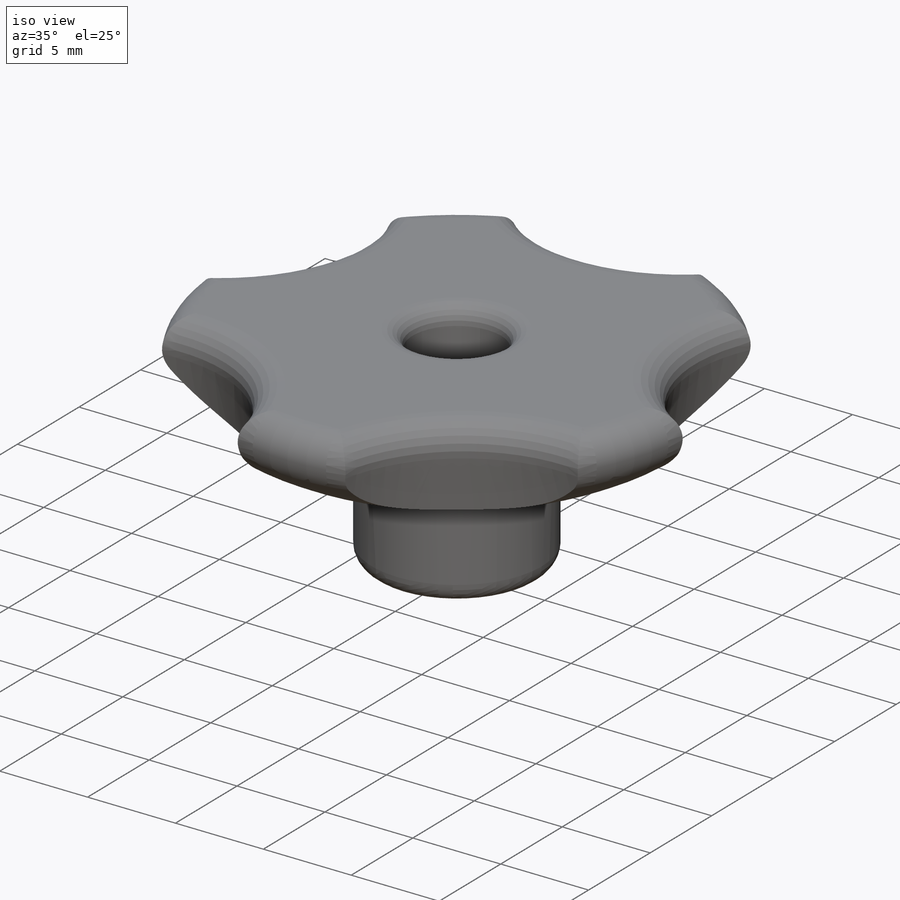
[diagram: iso view]
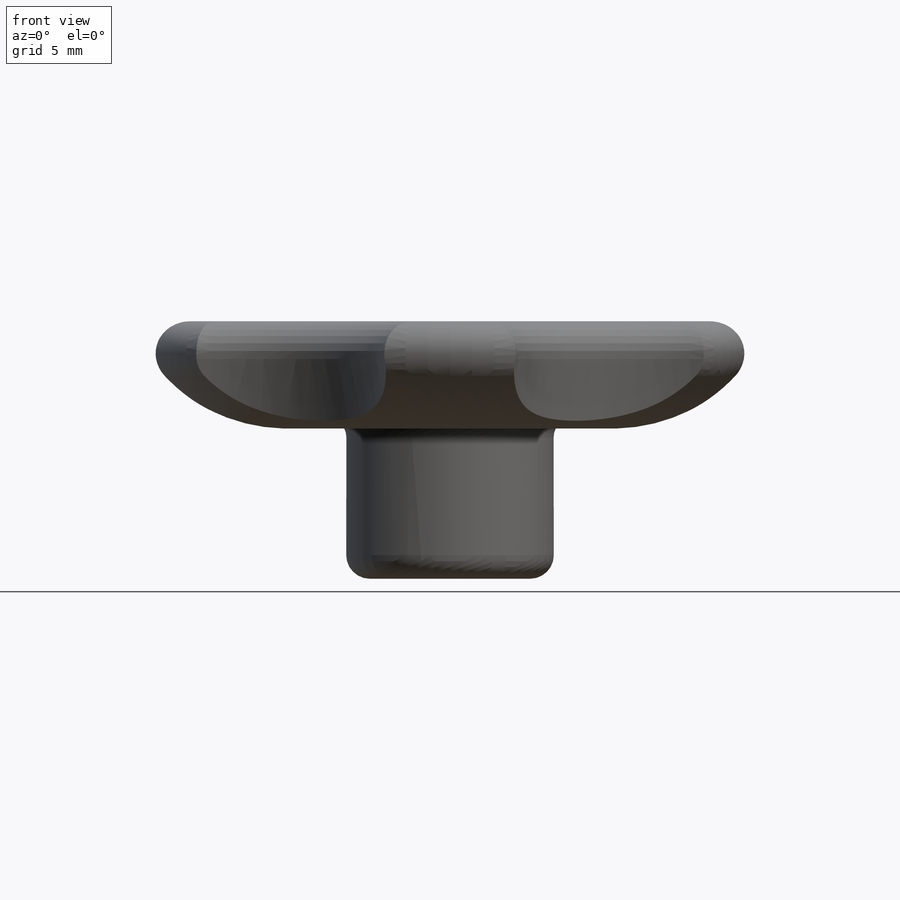
[diagram: front view]
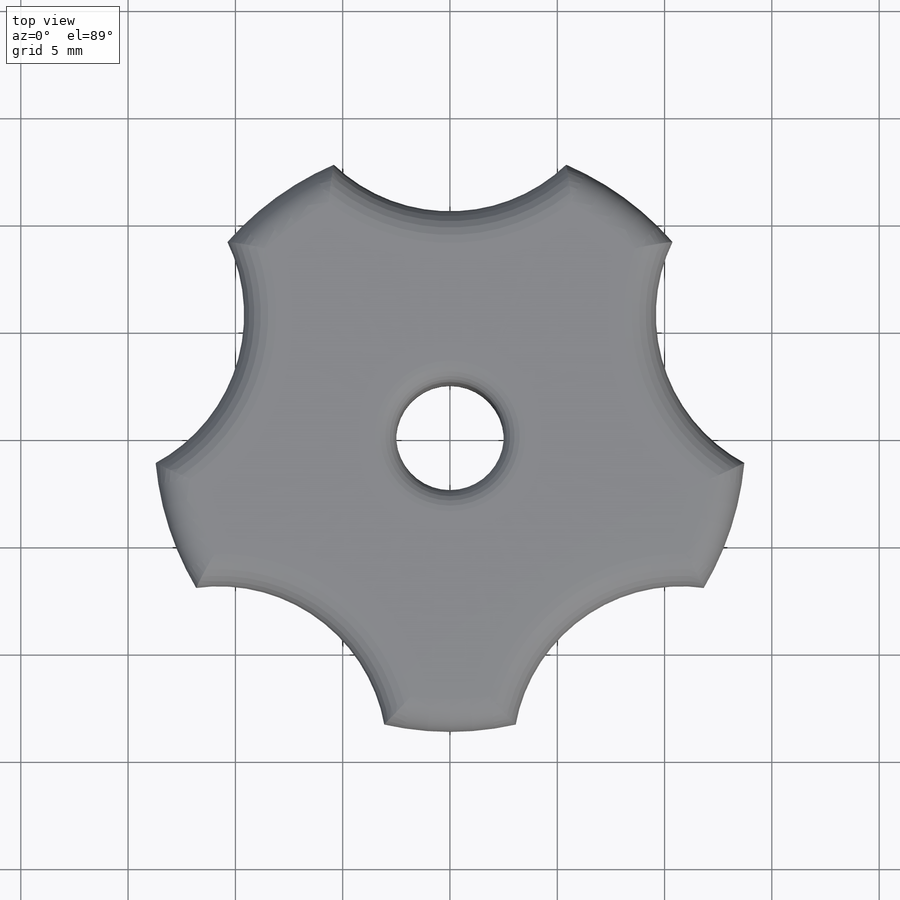
[diagram: top view]
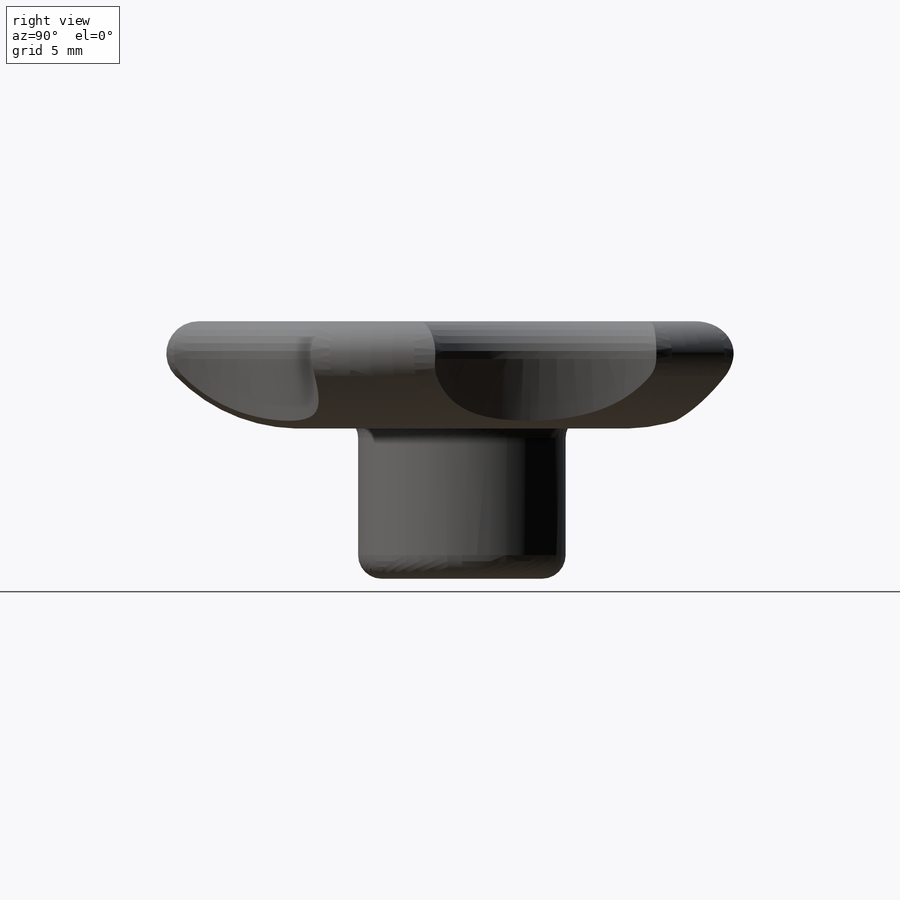
[diagram: right view]
SOLIDWORKS PART (.sldprt)
format: sldprt  version: not decoded by parser v0  size: 354,816 bytes
history: native  units: mm
features: sketch x4, fillet x4, plane x3, extrude x2, cut_extrude x2, material x1, pattern_circular x1 (+9 scaffold rows collapsed)
feature tree (26):
  scaffold x9  (default folders/planes/origin — collapsed)
  material  "Matériau <non spécifié>"
  plane  "Plan de face"
  plane  "Plan de dessus"
  plane  "Plan de droite"
  sketch  "Esquisse1"  dims[D1=5.02mm D2=30.0mm]
  extrude  "Boss.-Extru.1"  Depth=5mm
  fillet  "Congé7"  Radius=8mm
  sketch  "Esquisse2"  dims[D1=~9.47148mm D2=12.0mm]
  cut_extrude  "Enlèv. mat.-Extru.1"  [1 undecoded]
  pattern_circular  "Répétition circulaire1"  Count=5  [1 undecoded]
  sketch  "Esquisse3"  dims[D1=0.0mm]
  cut_extrude  "Enlèv. mat.-Extru.2"  Depth=1mm
  sketch  "Esquisse4"  dims[D1=0.0mm]
  extrude  "Boss.-Extru.2"  Depth=8mm
  fillet  "Congé10"  Radius=1.1mm
  fillet  "Congé9"  Radius=1.5mm
  fillet  "Congé11"  Radius=1mm
decode coverage: 12 of 13 modeling features carry decoded parameters
note: ~ marks probable driven/reference dimensions
note: 2 parameter values undecoded
note: suppression state not decoded; provenance and decode notes live in map.json
